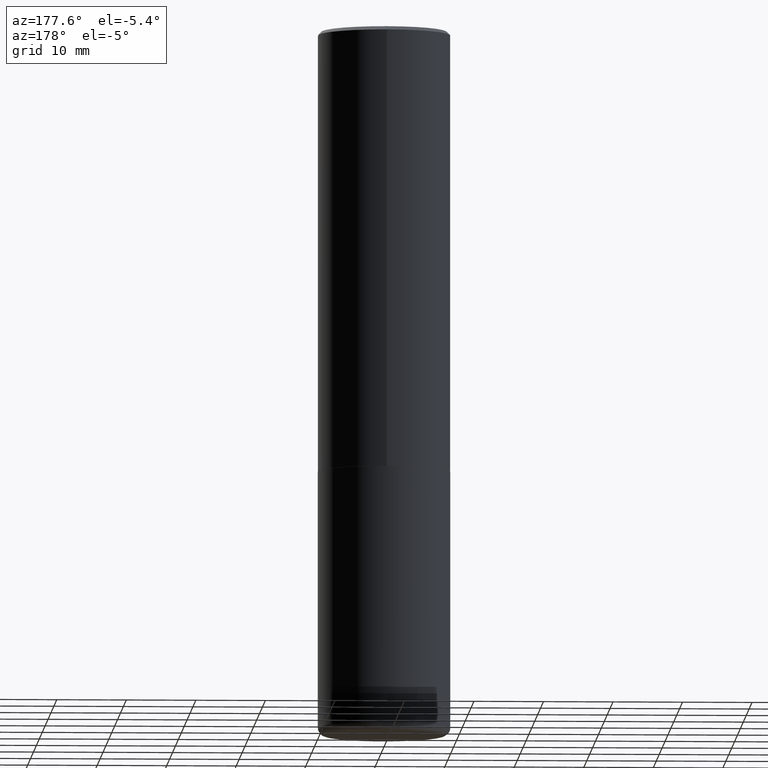
[diagram: clean part render]
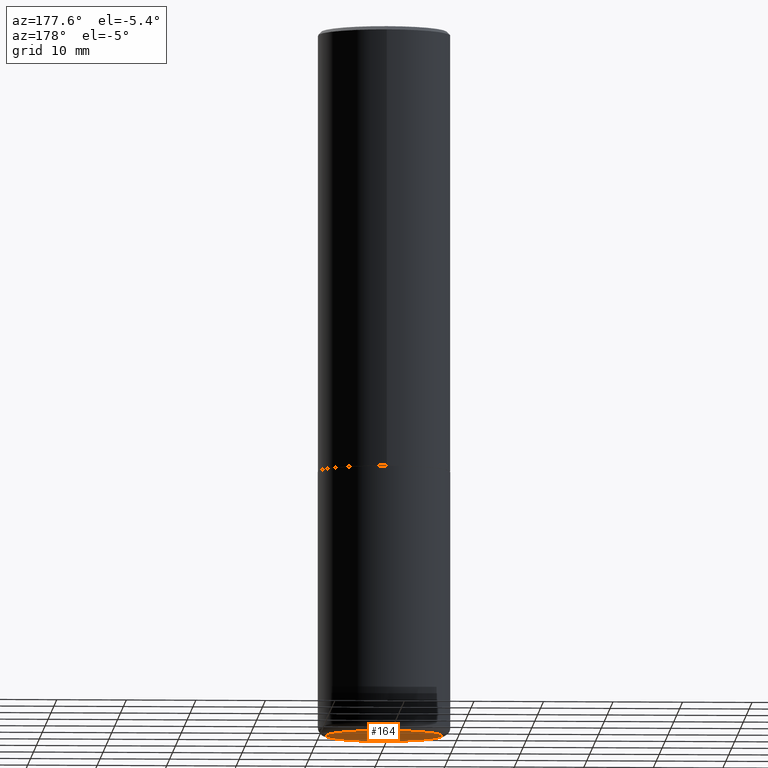
[diagram: same view with one face highlighted and labeled with its STEP entity id]
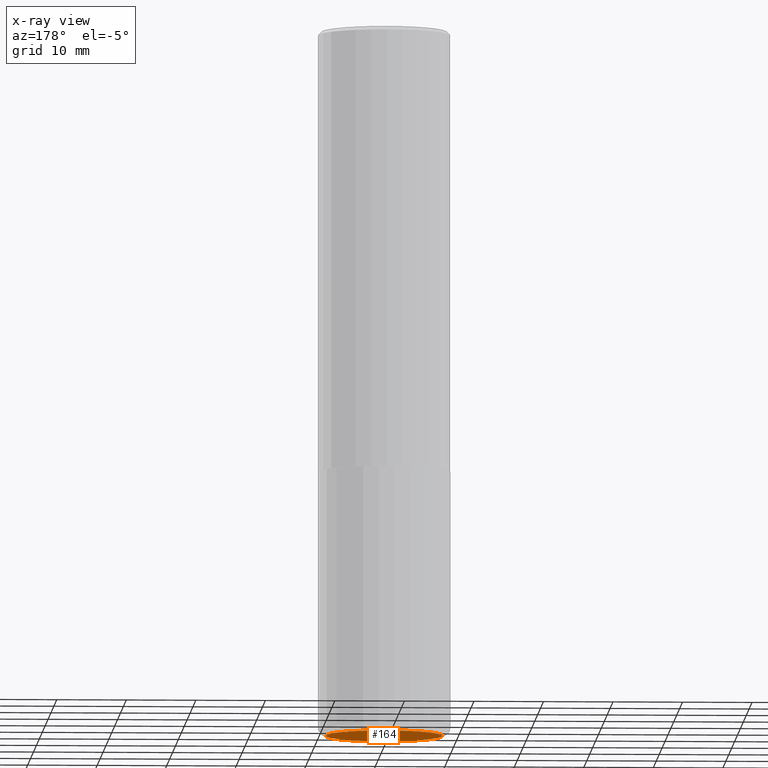
[diagram: x-ray of the same camera — body ghosted, the highlighted face saturated]
A machine part, auxiliary view. The second image highlights one B-rep face of the part: STEP entity #164.
The next image is the same camera in x-ray: the body ghosted, the highlighted face saturated — about 0% of this face is hidden behind the body in this view.
In plain terms, the highlighted planar face has unit normal (0, -0, -1).
Its self-contained STEP definition (entity closure, byte-faithful):
#11 = CIRCLE ( 'NONE', #20, 0.3300000000000000155 ) ;
#16 = EDGE_CURVE ( 'NONE', #68, #153, #11, .T. ) ;
#20 = AXIS2_PLACEMENT_3D ( 'NONE', #45, #111, #303 ) ;
#27 = CARTESIAN_POINT ( 'NONE',  ( 1.440645524434531058E-28, -7.343263552550124896E-15, -4.000000000000000000 ) ) ;
#33 = DIRECTION ( 'NONE',  ( -1.000000000000000000, 6.982962677686265922E-15, -4.876176775795935793E-29 ) ) ;
#45 = CARTESIAN_POINT ( 'NONE',  ( 9.781875224740545266E-29, -1.396592535537258075E-14, -3.999999999999999556 ) ) ;
#68 = VERTEX_POINT ( 'NONE', #211 ) ;
#84 = DIRECTION ( 'NONE',  ( 1.000000000000000000, -6.982962677686267499E-15, 0.000000000000000000 ) ) ;
#91 = DIRECTION ( 'NONE',  ( 2.438088387897960049E-29, -3.491481338843145188E-15, -1.000000000000000000 ) ) ;
#102 = EDGE_LOOP ( 'NONE', ( #231, #105 ) ) ;
#105 = ORIENTED_EDGE ( 'NONE', *, *, #285, .F. ) ;
#111 = DIRECTION ( 'NONE',  ( -2.445468806185136597E-29, 3.491481338843145583E-15, 1.000000000000000000 ) ) ;
#138 = AXIS2_PLACEMENT_3D ( 'NONE', #27, #91, #33 ) ;
#152 = CIRCLE ( 'NONE', #395, 0.3300000000000000155 ) ;
#153 = VERTEX_POINT ( 'NONE', #155 ) ;
#155 = CARTESIAN_POINT ( 'NONE',  ( -0.3300000000000000155, -1.138270388169425732E-14, -3.999999999999999556 ) ) ;
#164 = ADVANCED_FACE ( 'NONE', ( #344 ), #181, .T. ) ;
#181 = PLANE ( 'NONE',  #138 ) ;
#202 = CARTESIAN_POINT ( 'NONE',  ( 9.781875224740545266E-29, -1.396592535537258075E-14, -3.999999999999999556 ) ) ;
#211 = CARTESIAN_POINT ( 'NONE',  ( 0.3300000000000000155, -1.627030303900904751E-14, -3.999999999999999556 ) ) ;
#231 = ORIENTED_EDGE ( 'NONE', *, *, #16, .F. ) ;
#235 = DIRECTION ( 'NONE',  ( -2.445468806185136597E-29, 3.491481338843145583E-15, 1.000000000000000000 ) ) ;
#285 = EDGE_CURVE ( 'NONE', #153, #68, #152, .T. ) ;
#303 = DIRECTION ( 'NONE',  ( 1.000000000000000000, -6.982962677686267499E-15, 0.000000000000000000 ) ) ;
#344 = FACE_OUTER_BOUND ( 'NONE', #102, .T. ) ;
#395 = AXIS2_PLACEMENT_3D ( 'NONE', #202, #235, #84 ) ;